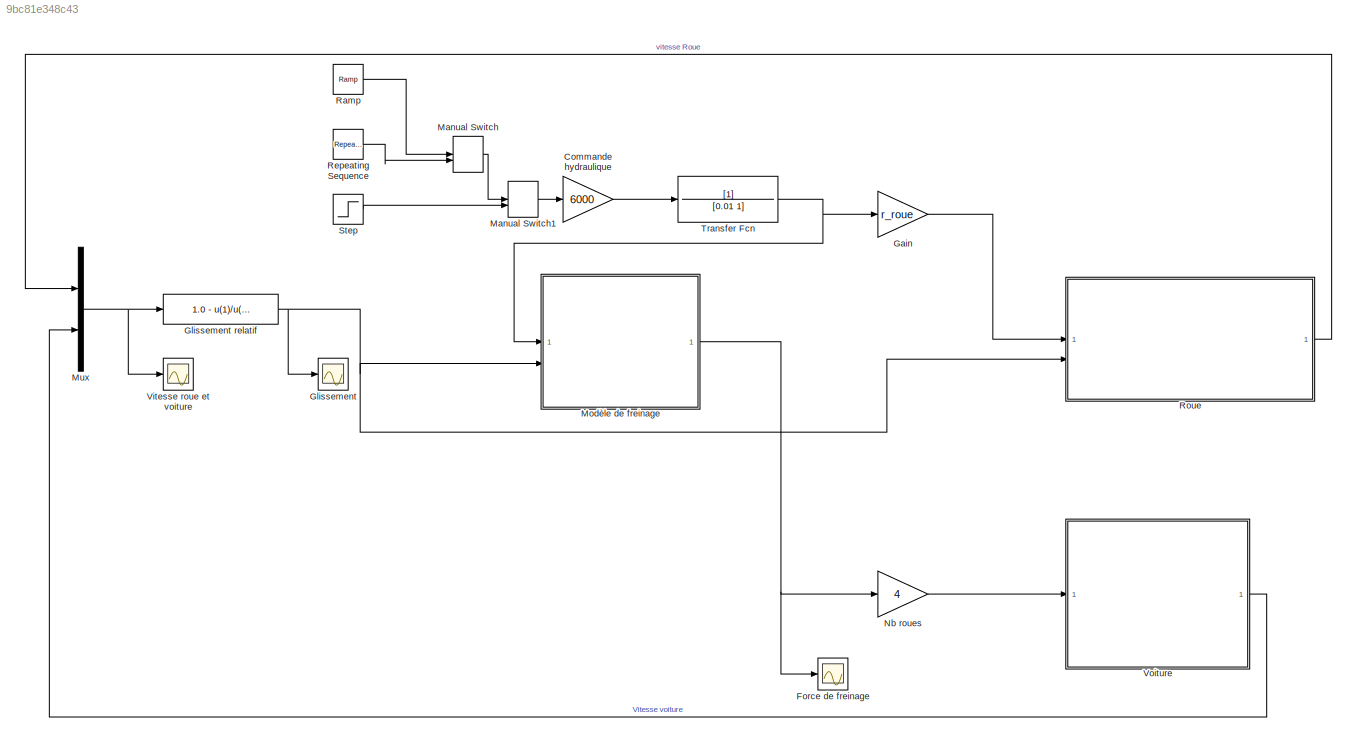
MODEL slx_9bc81e348c43
KIND model
CONFIG AbsTol = auto
CONFIG EnableMultiTasking = off
CONFIG FixedStep = auto
CONFIG InitFcn = ABS_config
CONFIG MaxStep = auto
CONFIG MinStep = auto
CONFIG RelTol = 1e-3
CONFIG SampleTimeConstraint = Unconstrained
CONFIG SolverName = VariableStepAuto
CONFIG StartTime = 0.0
CONFIG StopTime = 17
BLOCK [Gain] Commande hydraulique
  Gain = 6000
BLOCK [Scope] Force de freinage
  Floating = off
  NumInputPorts = 1
  ScopeSpecificationString = Simulink.scopes.TimeScopeBlockCfg('CurrentConfiguration', extmgr.ConfigurationSet(extmgr.Configuration('Core','General UI',true),extmgr.Configuration('Core','Source UI',true),extmgr.Configuration('Sources','WiredSimulink',true),extmgr.Configuration('Visuals','Time Domain',true,'SerializedDisplays',{struct('MinYLimReal','-245.03507','MaxYLimReal','2205.31561','YLabelReal','','MinYLimMag',' 0.00000'...<+1427ch>
BLOCK [Gain] Gain
  Gain = r_roue
BLOCK [Scope] Glissement
  Floating = off
  NumInputPorts = 1
  ScopeSpecificationString = Simulink.scopes.TimeScopeBlockCfg('CurrentConfiguration', extmgr.ConfigurationSet(extmgr.Configuration('Core','General UI',true),extmgr.Configuration('Core','Source UI',true),extmgr.Configuration('Sources','WiredSimulink',true,'DataLoggingVariableName','ScopeData1'),extmgr.Configuration('Visuals','Time Domain',true,'SerializedDisplays',{struct('MinYLimReal','-0.125','MaxYLimReal','1.125','YLabelRe...<+1461ch>
BLOCK [Fcn] Glissement relatif
  Expr = 1.0 - u(1)/u(2)
BLOCK [ManualSwitch] Manual Switch
  CurrentSetting = 0
BLOCK [ManualSwitch] Manual Switch1
  CurrentSetting = 0
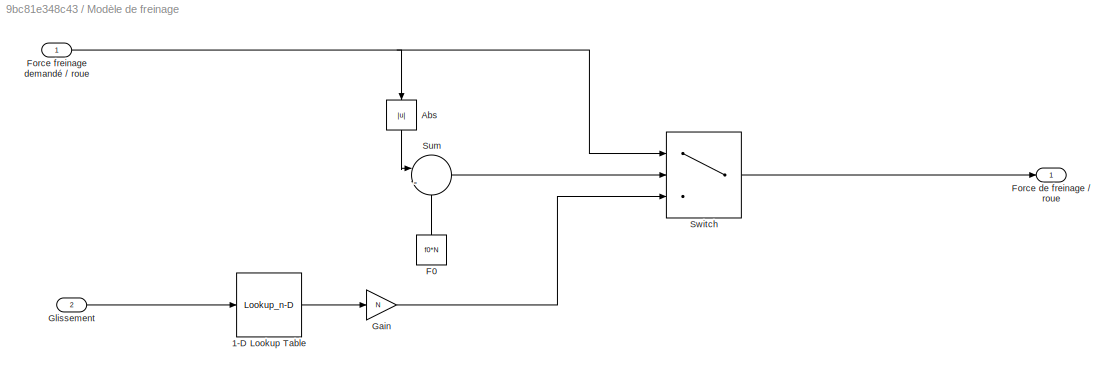
BLOCK [SubSystem] Modèle de freinage
BLOCK [Lookup_n-D] Modèle de freinage/1-D Lookup Table
  BreakpointsForDimension1 = [0,0.025,0.05,0.1,0.15,0.2,0.25,0.3,0.35,0.4,0.45,0.5,0.55,0.6,0.65,0.7,0.75,0.8,0.85,0.9,0.95,1]
  InputPortMap = u0
  InternalRulePriority = Speed
  NumberOfTableDimensions = 1
  RndMeth = Simplest
  Table = [0,0.34,0.6,0.86,0.91,0.86,0.83,0.76,0.72,0.71,0.7,0.68,0.67,0.66,0.65,0.64,0.63,0.63,0.62,0.615,0.61,0.61]
BLOCK [Abs] Modèle de freinage/Abs
  NameLocation = left
  SaturateOnIntegerOverflow = off
BLOCK [Constant] Modèle de freinage/F0
  NameLocation = right
  Value = f0*N
BLOCK [Outport] Modèle de freinage/Force de freinage // roue
  VectorParamsAs1DForOutWhenUnconnected = off
BLOCK [Inport] Modèle de freinage/Force freinage demandé // roue
BLOCK [Gain] Modèle de freinage/Gain
  Gain = N
BLOCK [Inport] Modèle de freinage/Glissement
  Port = 2
BLOCK [Sum] Modèle de freinage/Sum
  Inputs = |-+
BLOCK [Switch] Modèle de freinage/Switch
  InputSameDT = off
  SaturateOnIntegerOverflow = off
BLOCK [Mux] Mux
  DisplayOption = bar
  Inputs = 2
BLOCK [Gain] Nb roues
  Gain = 4
BLOCK [Reference] Ramp  REF=simulink/Sources/Ramp
  SourceBlock = simulink/Sources/Ramp
  SourceType = Ramp
BLOCK [Reference] Repeating Sequence  REF=simulink/Sources/Repeating
Sequence
  SourceBlock = simulink/Sources/Repeating\nSequence
  SourceType = Repeating table
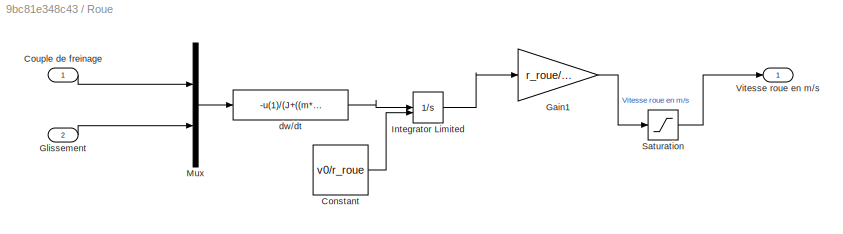
BLOCK [SubSystem] Roue
BLOCK [Constant] Roue/Constant
  Value = v0/r_roue
BLOCK [Inport] Roue/Couple de freinage
BLOCK [Gain] Roue/Gain1
  Gain = r_roue/3.6
BLOCK [Inport] Roue/Glissement
  Port = 2
BLOCK [Integrator] Roue/Integrator Limited
  InitialConditionSource = external
  LimitOutput = on
  LowerSaturationLimit = 0
  UpperSaturationLimit = 1000
BLOCK [Mux] Roue/Mux
  DisplayOption = bar
  Inputs = 2
BLOCK [Saturate] Roue/Saturation
  LowerLimit = 0
  UpperLimit = 1000
BLOCK [Outport] Roue/Vitesse roue en m//s
BLOCK [Fcn] Roue/dw//dt
  Expr = -u(1)/(J+((m*r_roue^2)/(4-4*u(2))))
BLOCK [Step] Step
  SampleTime = 0
  Time = 5
BLOCK [TransferFcn] Transfer Fcn
  Denominator = [0.01 1]
BLOCK [Scope] Vitesse roue et voiture
  Floating = off
  NumInputPorts = 1
  ScopeSpecificationString = Simulink.scopes.TimeScopeBlockCfg('CurrentConfiguration', extmgr.ConfigurationSet(extmgr.Configuration('Core','General UI',true),extmgr.Configuration('Core','Source UI',true),extmgr.Configuration('Sources','WiredSimulink',true,'DataLoggingVariableName','ScopeData1'),extmgr.Configuration('Visuals','Time Domain',true,'SerializedDisplays',{struct('MinYLimReal','-3.37075','MaxYLimReal','31.23873','YLa...<+1471ch>
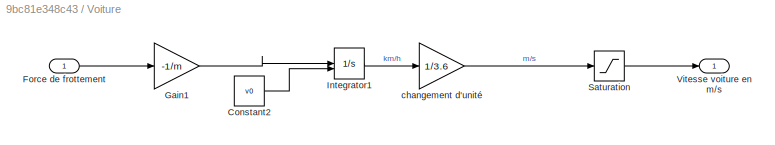
BLOCK [SubSystem] Voiture
BLOCK [Constant] Voiture/Constant2
  Value = v0
BLOCK [Inport] Voiture/Force de frottement
BLOCK [Gain] Voiture/Gain1
  Gain = -1/m
BLOCK [Integrator] Voiture/Integrator1
  InitialConditionSource = external
BLOCK [Saturate] Voiture/Saturation
  LowerLimit = 0
  UpperLimit = 1000
BLOCK [Outport] Voiture/Vitesse voiture en m//s
  VectorParamsAs1DForOutWhenUnconnected = off
BLOCK [Gain] Voiture/changement d'unité
  Gain = 1/3.6
LINE Commande hydraulique:1 -> Transfer Fcn:1
LINE Gain:1 -> Roue:1
NET Glissement relatif:1 -> Glissement:1, Modèle de freinage:2, Roue:2
LINE Manual Switch1:1 -> Commande hydraulique:1
LINE Manual Switch:1 -> Manual Switch1:1
LINE Modèle de freinage/1-D Lookup Table:1 -> Modèle de freinage/Gain:1
LINE Modèle de freinage/Abs:1 -> Modèle de freinage/Sum:1
LINE Modèle de freinage/F0:1 -> Modèle de freinage/Sum:2
NET Modèle de freinage/Force freinage demandé // roue:1 -> Modèle de freinage/Abs:1, Modèle de freinage/Switch:1
LINE Modèle de freinage/Gain:1 -> Modèle de freinage/Switch:3
LINE Modèle de freinage/Glissement:1 -> Modèle de freinage/1-D Lookup Table:1
LINE Modèle de freinage/Sum:1 -> Modèle de freinage/Switch:2
LINE Modèle de freinage/Switch:1 -> Modèle de freinage/Force de freinage // roue:1
NET Modèle de freinage:1 -> Force de freinage:1, Nb roues:1
NET Mux:1 -> Glissement relatif:1, Vitesse roue et voiture:1
LINE Nb roues:1 -> Voiture:1
LINE Ramp:1 -> Manual Switch:1
LINE Repeating Sequence:1 -> Manual Switch:2
LINE Roue/Constant:1 -> Roue/Integrator Limited:2
LINE Roue/Couple de freinage:1 -> Roue/Mux:1
LINE Roue/Gain1:1 -> Roue/Saturation:1
LINE Roue/Glissement:1 -> Roue/Mux:2
LINE Roue/Integrator Limited:1 -> Roue/Gain1:1
LINE Roue/Mux:1 -> Roue/dw//dt:1
LINE Roue/Saturation:1 -> Roue/Vitesse roue en m//s:1
LINE Roue/dw//dt:1 -> Roue/Integrator Limited:1
LINE Roue:1 -> Mux:1
LINE Step:1 -> Manual Switch1:2
NET Transfer Fcn:1 -> Gain:1, Modèle de freinage:1
LINE Voiture/Constant2:1 -> Voiture/Integrator1:2
LINE Voiture/Force de frottement:1 -> Voiture/Gain1:1
LINE Voiture/Gain1:1 -> Voiture/Integrator1:1
LINE Voiture/Integrator1:1 -> Voiture/changement d'unité:1
LINE Voiture/Saturation:1 -> Voiture/Vitesse voiture en m//s:1
LINE Voiture/changement d'unité:1 -> Voiture/Saturation:1
LINE Voiture:1 -> Mux:2
note: NET lines group one-source signal fan-out (src -> all destinations, sorted); 1:1 wires keep LINE
